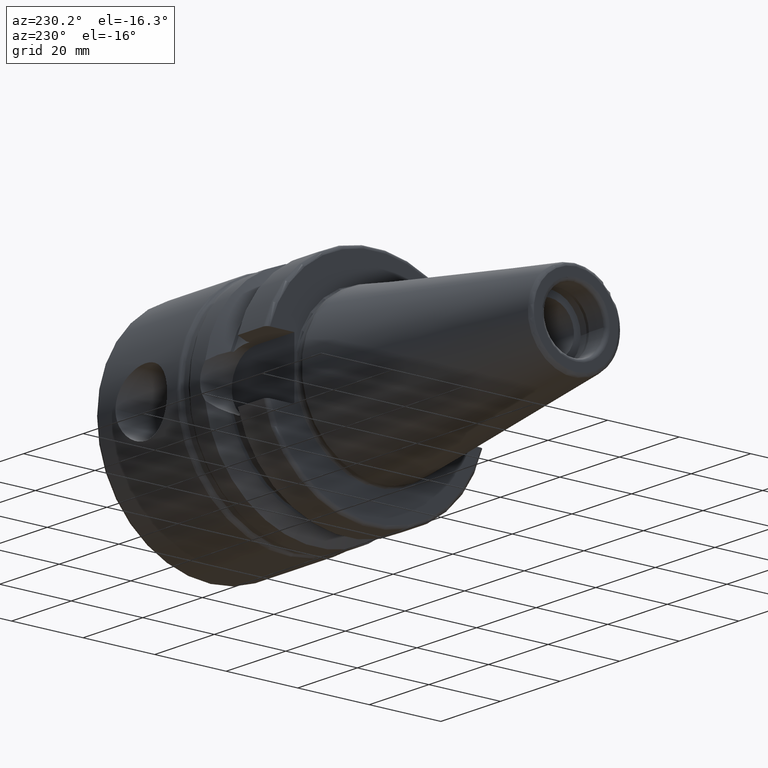
[diagram: clean part render]
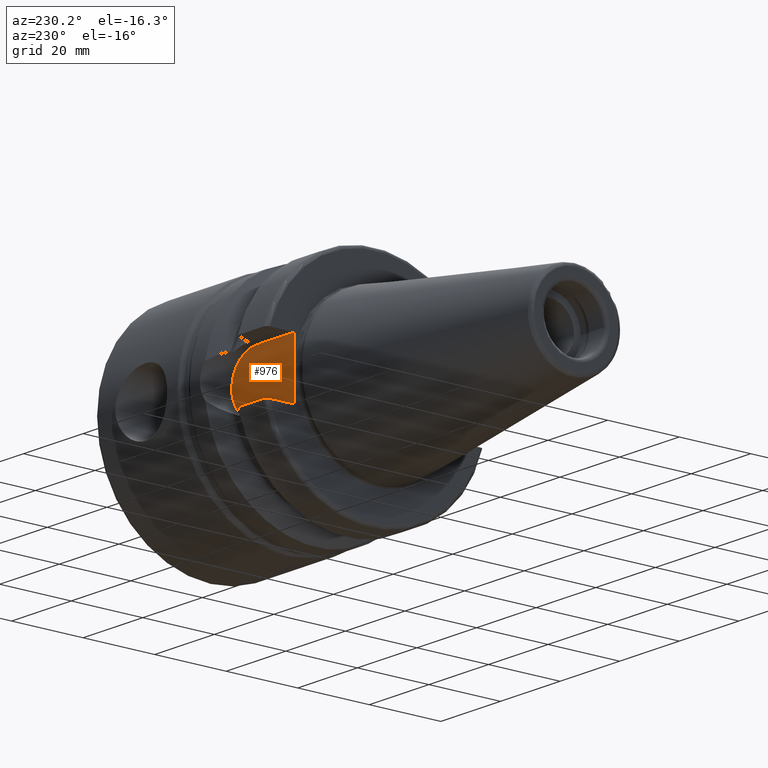
[diagram: same view with one face highlighted and labeled with its STEP entity id]
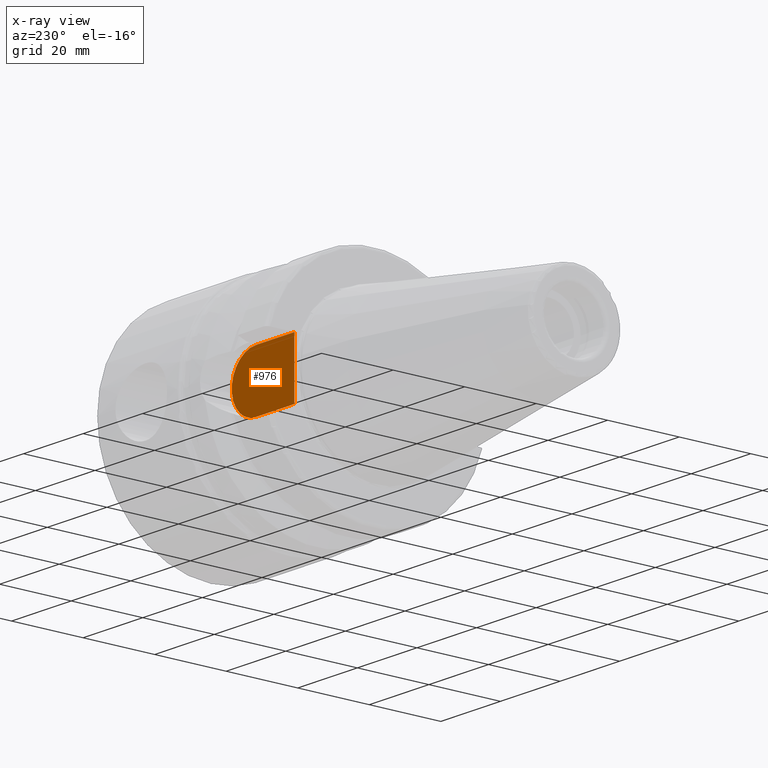
[diagram: x-ray of the same camera — body ghosted, the highlighted face saturated]
A machine part, auxiliary view. The second image highlights one B-rep face of the part: STEP entity #976.
The next image is the same camera in x-ray: the body ghosted, the highlighted face saturated — about 0% of this face is hidden behind the body in this view.
In plain terms, the highlighted planar face has unit normal (0, 1, 0).
Its self-contained STEP definition (entity closure, byte-faithful):
#50=PLANE('',#1108);
#106=CIRCLE('',#1105,8.05);
#182=FACE_OUTER_BOUND('',#246,.T.);
#246=EDGE_LOOP('',(#828,#829,#830,#831));
#305=LINE('',#1854,#353);
#310=LINE('',#1878,#358);
#311=LINE('',#1880,#359);
#353=VECTOR('',#1365,10.);
#358=VECTOR('',#1372,10.);
#359=VECTOR('',#1375,10.);
#455=VERTEX_POINT('',#1829);
#456=VERTEX_POINT('',#1831);
#461=VERTEX_POINT('',#1853);
#466=VERTEX_POINT('',#1876);
#582=EDGE_CURVE('',#456,#455,#106,.T.);
#588=EDGE_CURVE('',#461,#456,#305,.T.);
#595=EDGE_CURVE('',#455,#466,#310,.T.);
#596=EDGE_CURVE('',#461,#466,#311,.T.);
#828=ORIENTED_EDGE('',*,*,#595,.T.);
#829=ORIENTED_EDGE('',*,*,#596,.F.);
#830=ORIENTED_EDGE('',*,*,#588,.T.);
#831=ORIENTED_EDGE('',*,*,#582,.T.);
#976=ADVANCED_FACE('',(#182),#50,.T.);
#1105=AXIS2_PLACEMENT_3D('',#1832,#1358,#1359);
#1108=AXIS2_PLACEMENT_3D('',#1879,#1373,#1374);
#1358=DIRECTION('center_axis',(0.,1.,0.));
#1359=DIRECTION('ref_axis',(0.,0.,1.));
#1365=DIRECTION('',(1.,0.,8.57315076930623E-17));
#1372=DIRECTION('',(-1.,0.,-8.57315076930623E-17));
#1373=DIRECTION('center_axis',(0.,1.,0.));
#1374=DIRECTION('ref_axis',(0.,0.,1.));
#1375=DIRECTION('',(0.,0.,-1.));
#1829=CARTESIAN_POINT('',(14.95,22.6,-8.05));
#1831=CARTESIAN_POINT('',(14.95,22.6,8.05));
#1832=CARTESIAN_POINT('Origin',(14.95,22.6,0.));
#1853=CARTESIAN_POINT('',(1.99999999999999,22.6,8.05));
#1854=CARTESIAN_POINT('',(1.99999999999999,22.6,8.05));
#1876=CARTESIAN_POINT('',(1.99999999999999,22.6,-8.05));
#1878=CARTESIAN_POINT('',(14.95,22.6,-8.05));
#1879=CARTESIAN_POINT('Origin',(12.5,22.6,0.));
#1880=CARTESIAN_POINT('',(1.99999999999999,22.6,0.));